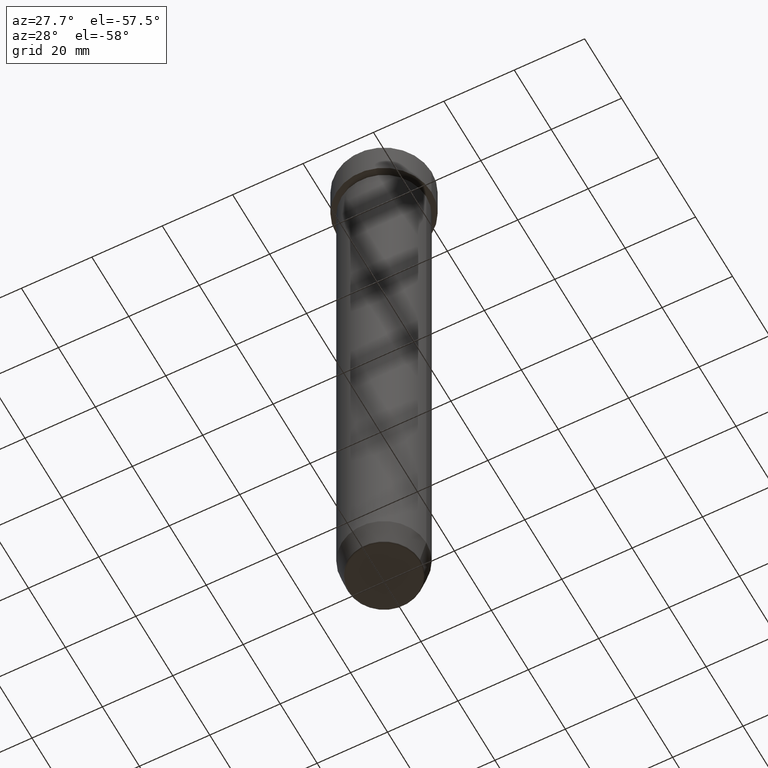
[diagram: clean part render]
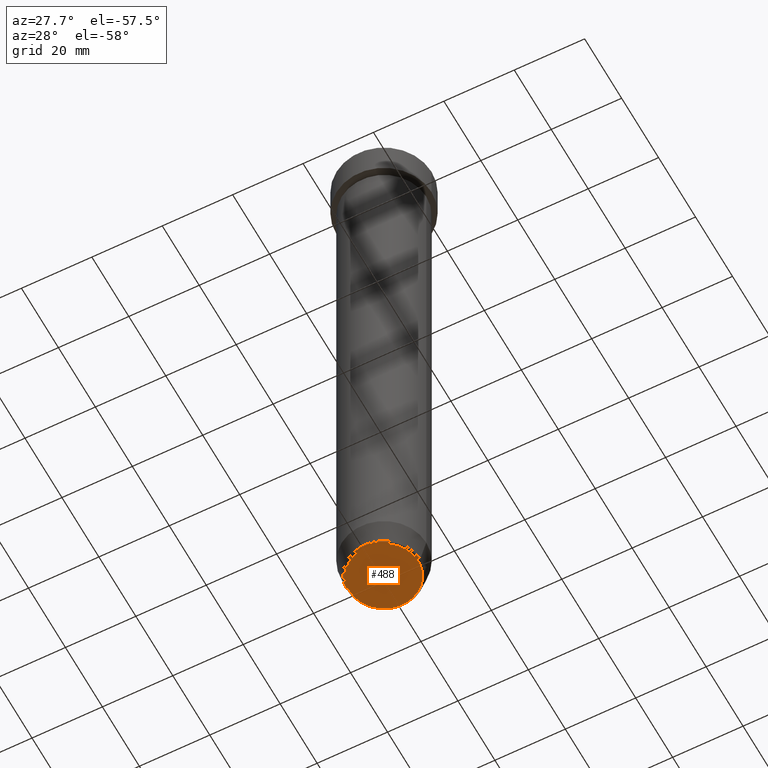
[diagram: same view with one face highlighted and labeled with its STEP entity id]
A machine part, auxiliary view. The second image highlights one B-rep face of the part: STEP entity #488.
In plain terms, the highlighted planar face has unit normal (0, -0, 1).
Its self-contained STEP definition (entity closure, byte-faithful):
#37 = AXIS2_PLACEMENT_3D ( 'NONE', #41, #450, #252 ) ;
#41 = CARTESIAN_POINT ( 'NONE',  ( 0.000000000000000000, 0.000000000000000000, -180.0000000000000000 ) ) ;
#42 = CARTESIAN_POINT ( 'NONE',  ( 9.740692158992656502, 0.000000000000000000, -180.0000000000000000 ) ) ;
#68 = CIRCLE ( 'NONE', #37, 9.740692158992656502 ) ;
#102 = DIRECTION ( 'NONE',  ( 0.000000000000000000, -0.000000000000000000, 1.000000000000000000 ) ) ;
#107 = EDGE_CURVE ( 'NONE', #297, #442, #308, .T. ) ;
#125 = EDGE_CURVE ( 'NONE', #442, #297, #68, .T. ) ;
#200 = ORIENTED_EDGE ( 'NONE', *, *, #107, .T. ) ;
#206 = FACE_OUTER_BOUND ( 'NONE', #314, .T. ) ;
#209 = AXIS2_PLACEMENT_3D ( 'NONE', #409, #102, #598 ) ;
#216 = CARTESIAN_POINT ( 'NONE',  ( -9.740692158992656502, 1.222463696683474604E-15, -180.0000000000000000 ) ) ;
#235 = DIRECTION ( 'NONE',  ( 0.000000000000000000, 0.000000000000000000, -1.000000000000000000 ) ) ;
#252 = DIRECTION ( 'NONE',  ( 1.000000000000000000, 0.000000000000000000, 0.000000000000000000 ) ) ;
#297 = VERTEX_POINT ( 'NONE', #216 ) ;
#308 = CIRCLE ( 'NONE', #319, 9.740692158992656502 ) ;
#314 = EDGE_LOOP ( 'NONE', ( #359, #200 ) ) ;
#319 = AXIS2_PLACEMENT_3D ( 'NONE', #572, #235, #479 ) ;
#359 = ORIENTED_EDGE ( 'NONE', *, *, #125, .T. ) ;
#409 = CARTESIAN_POINT ( 'NONE',  ( 0.000000000000000000, 1.592040838891559450E-14, -180.0000000000000000 ) ) ;
#442 = VERTEX_POINT ( 'NONE', #42 ) ;
#450 = DIRECTION ( 'NONE',  ( 0.000000000000000000, 0.000000000000000000, -1.000000000000000000 ) ) ;
#479 = DIRECTION ( 'NONE',  ( 1.000000000000000000, 0.000000000000000000, 0.000000000000000000 ) ) ;
#488 = ADVANCED_FACE ( 'NONE', ( #206 ), #503, .F. ) ;
#503 = PLANE ( 'NONE',  #209 ) ;
#572 = CARTESIAN_POINT ( 'NONE',  ( 0.000000000000000000, 0.000000000000000000, -180.0000000000000000 ) ) ;
#598 = DIRECTION ( 'NONE',  ( 1.000000000000000000, 0.000000000000000000, 0.000000000000000000 ) ) ;